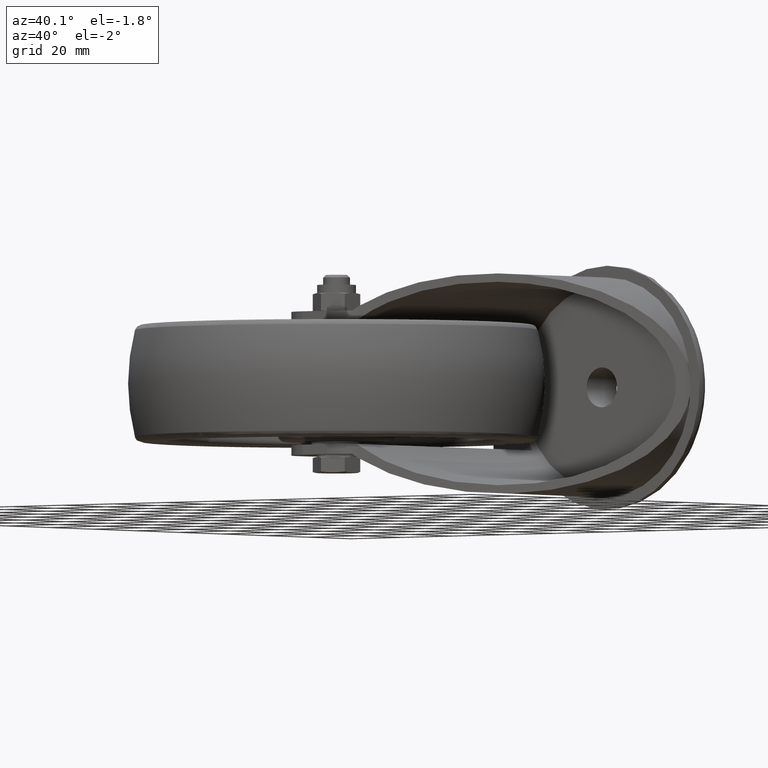
[diagram: clean part render]
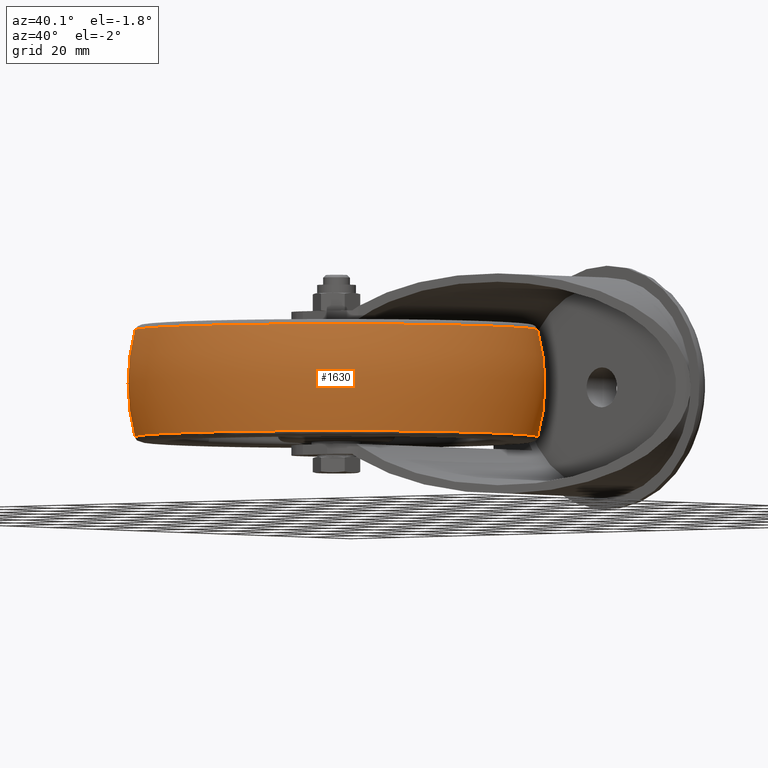
[diagram: same view with one face highlighted and labeled with its STEP entity id]
A machine part, auxiliary view. The second image highlights one B-rep face of the part: STEP entity #1630.
In plain terms, the highlighted spherical surface has radius 62.5 mm.
Its self-contained STEP definition (entity closure, byte-faithful):
#23=SPHERICAL_SURFACE('',#1957,62.4999999999997);
#319=FACE_OUTER_BOUND('',#445,.T.);
#445=EDGE_LOOP('',(#1498,#1499,#1500,#1501));
#549=CIRCLE('',#1956,60.4140145339399);
#550=CIRCLE('',#1958,62.4999999999997);
#551=CIRCLE('',#1959,60.4140145339399);
#823=VERTEX_POINT('',#3062);
#824=VERTEX_POINT('',#3066);
#1048=EDGE_CURVE('',#823,#823,#549,.T.);
#1049=EDGE_CURVE('',#823,#824,#550,.T.);
#1050=EDGE_CURVE('',#824,#824,#551,.T.);
#1498=ORIENTED_EDGE('',*,*,#1048,.F.);
#1499=ORIENTED_EDGE('',*,*,#1049,.T.);
#1500=ORIENTED_EDGE('',*,*,#1050,.T.);
#1501=ORIENTED_EDGE('',*,*,#1049,.F.);
#1630=ADVANCED_FACE('',(#319),#23,.T.);
#1956=AXIS2_PLACEMENT_3D('',#3064,#2459,#2460);
#1957=AXIS2_PLACEMENT_3D('',#3065,#2461,#2462);
#1958=AXIS2_PLACEMENT_3D('',#3067,#2463,#2464);
#1959=AXIS2_PLACEMENT_3D('',#3068,#2465,#2466);
#2459=DIRECTION('center_axis',(0.,0.,1.));
#2460=DIRECTION('ref_axis',(1.,0.,0.));
#2461=DIRECTION('center_axis',(6.12323399573676E-17,0.,1.));
#2462=DIRECTION('ref_axis',(1.,0.,0.));
#2463=DIRECTION('center_axis',(1.22464679914735E-16,-1.,0.));
#2464=DIRECTION('ref_axis',(-1.,-1.22464679914735E-16,0.));
#2465=DIRECTION('center_axis',(0.,0.,1.));
#2466=DIRECTION('ref_axis',(1.,0.,0.));
#3062=CARTESIAN_POINT('',(-60.4140145339399,-7.39858295226312E-15,16.0123966942149));
#3064=CARTESIAN_POINT('Origin',(0.,0.,16.0123966942149));
#3065=CARTESIAN_POINT('Origin',(2.98372437868011E-13,0.,-1.38777878078145E-14));
#3066=CARTESIAN_POINT('',(-60.4140145339399,-7.39858295226316E-15,-16.0123966942149));
#3067=CARTESIAN_POINT('Origin',(2.98372437868011E-13,0.,-1.38777878078145E-14));
#3068=CARTESIAN_POINT('Origin',(0.,0.,-16.0123966942149));